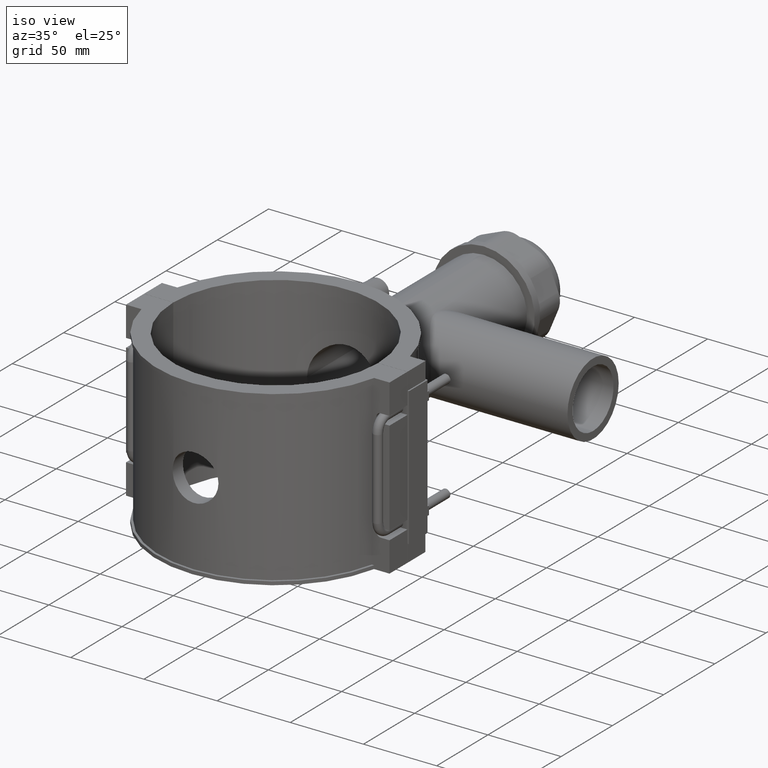
[diagram: clean part render]
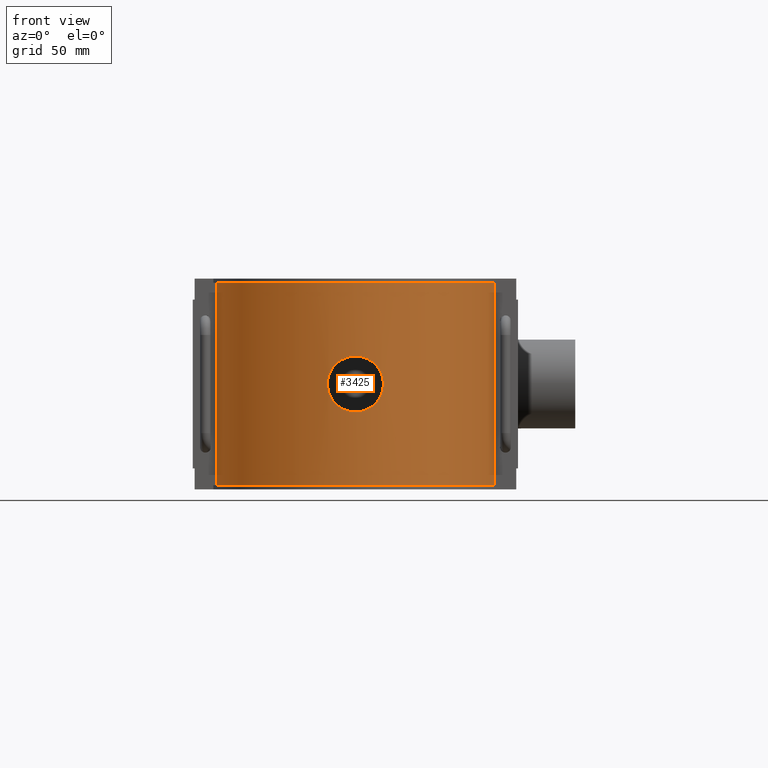
[diagram: tour spotlight — one face highlighted and labeled with its STEP entity id]
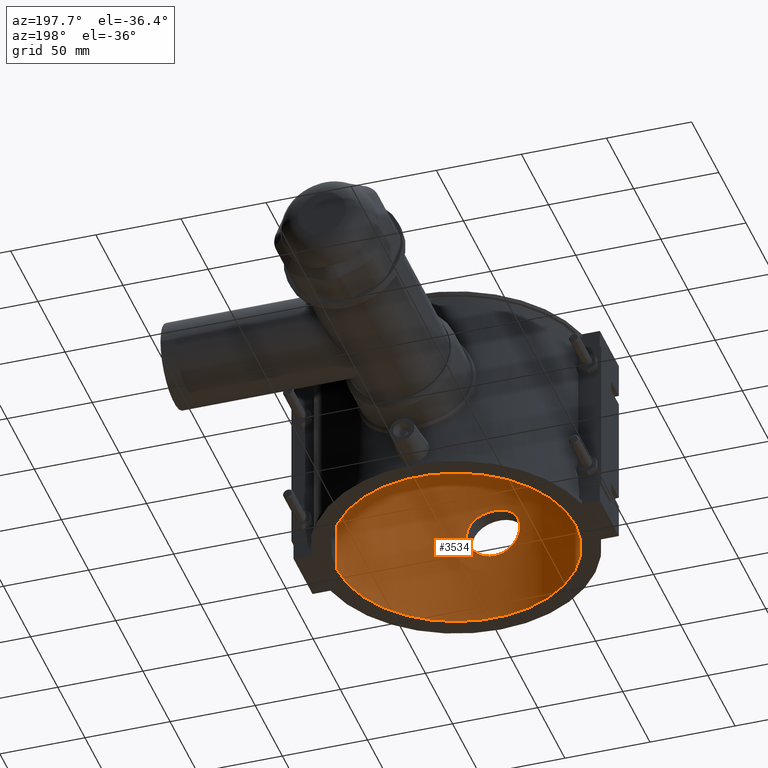
[diagram: tour spotlight — one face highlighted and labeled with its STEP entity id]
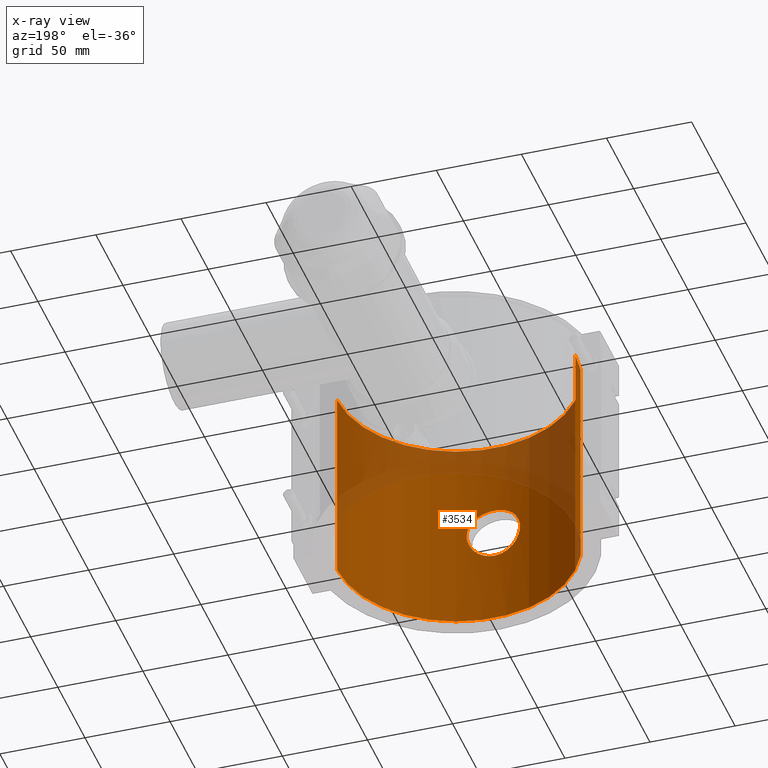
[diagram: x-ray of the same camera — body ghosted, this tour face saturated]
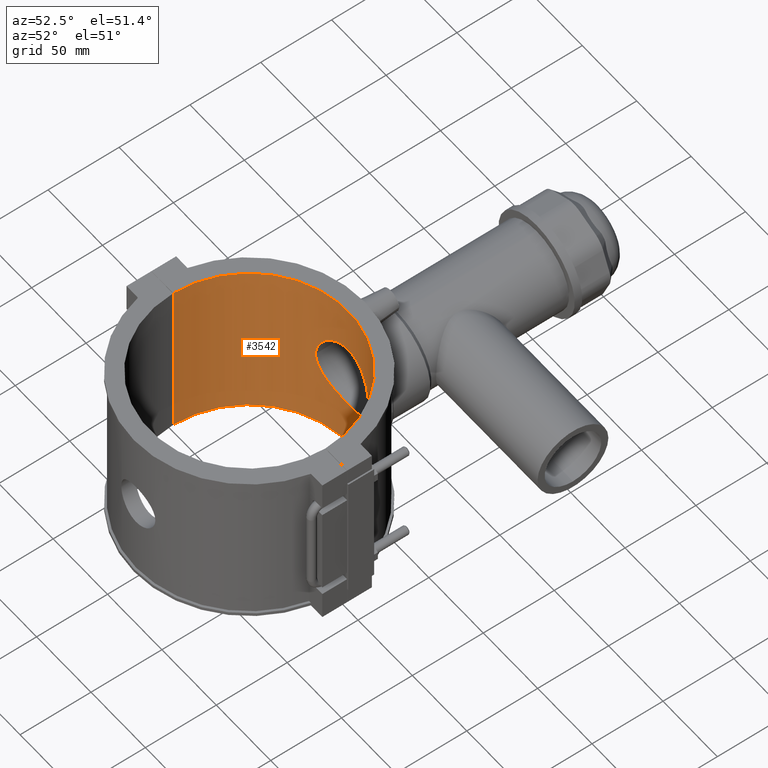
[diagram: tour spotlight — one face highlighted and labeled with its STEP entity id]
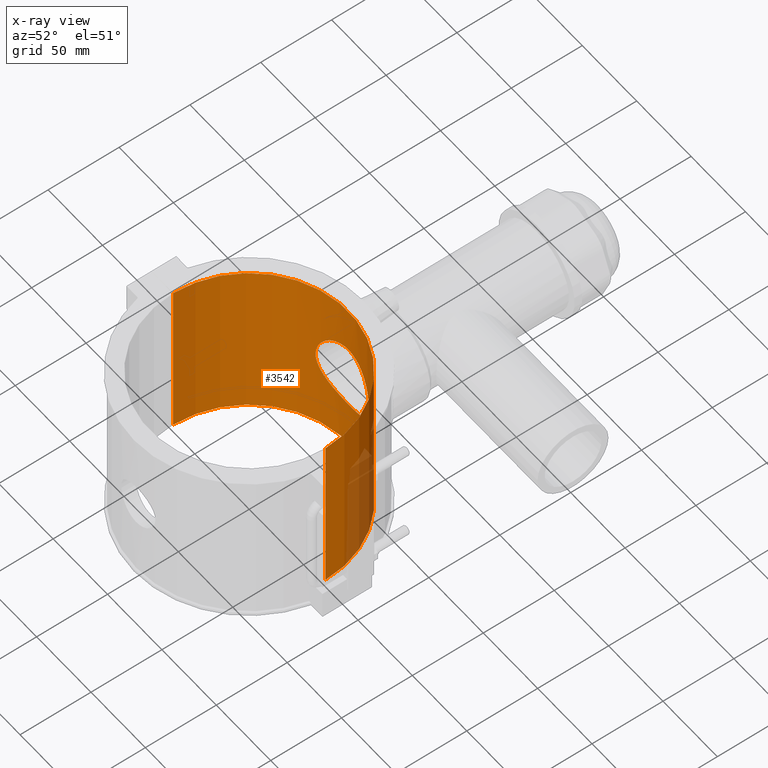
[diagram: x-ray of the same camera — body ghosted, this tour face saturated]
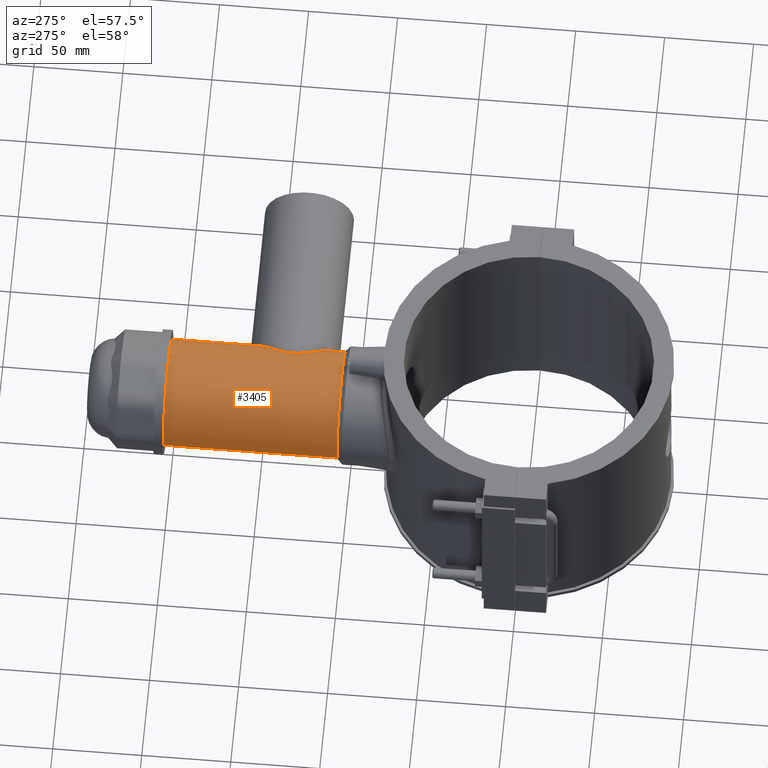
[diagram: tour spotlight — one face highlighted and labeled with its STEP entity id]
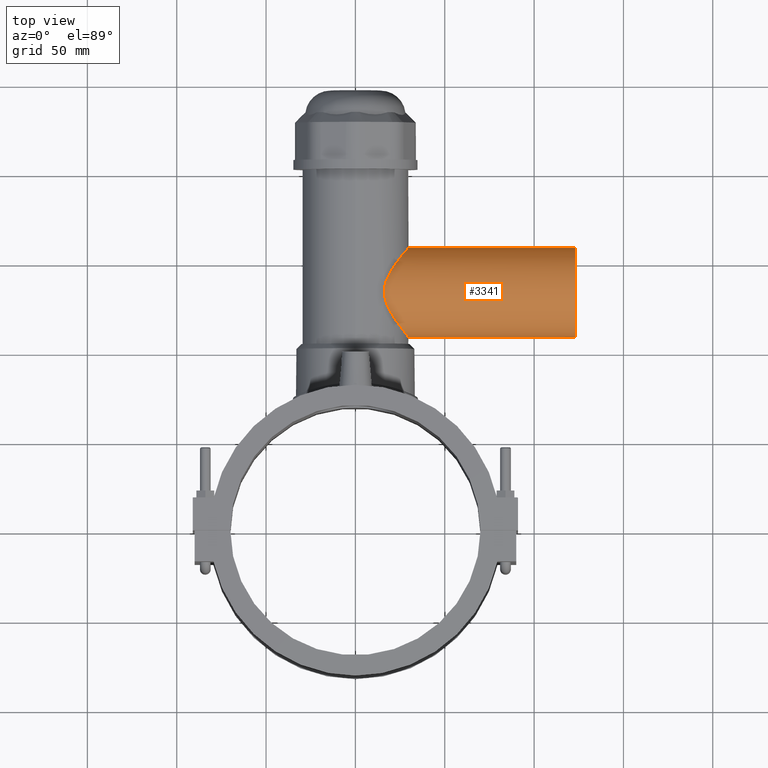
[diagram: tour spotlight — one face highlighted and labeled with its STEP entity id]
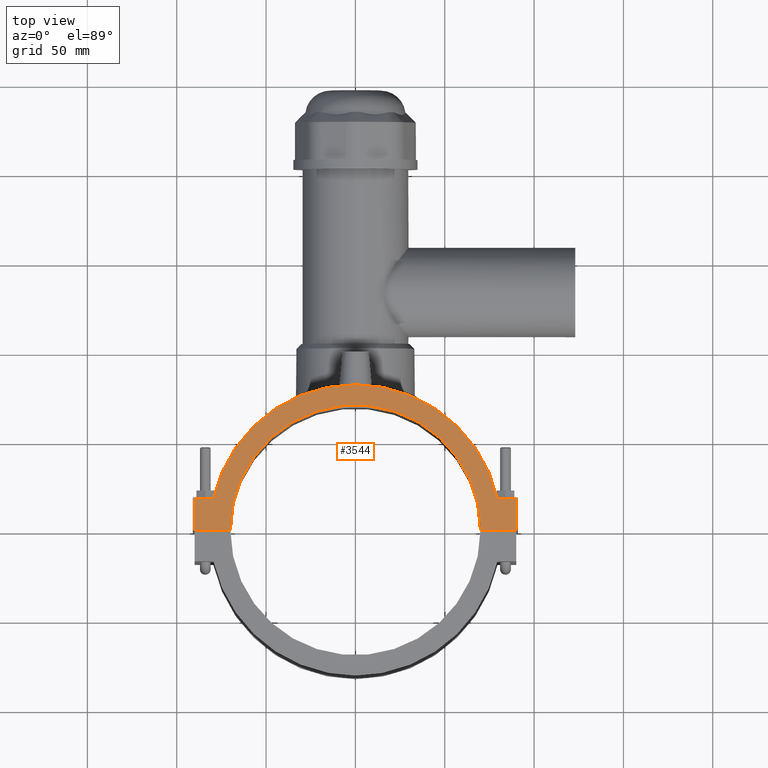
[diagram: tour spotlight — one face highlighted and labeled with its STEP entity id]
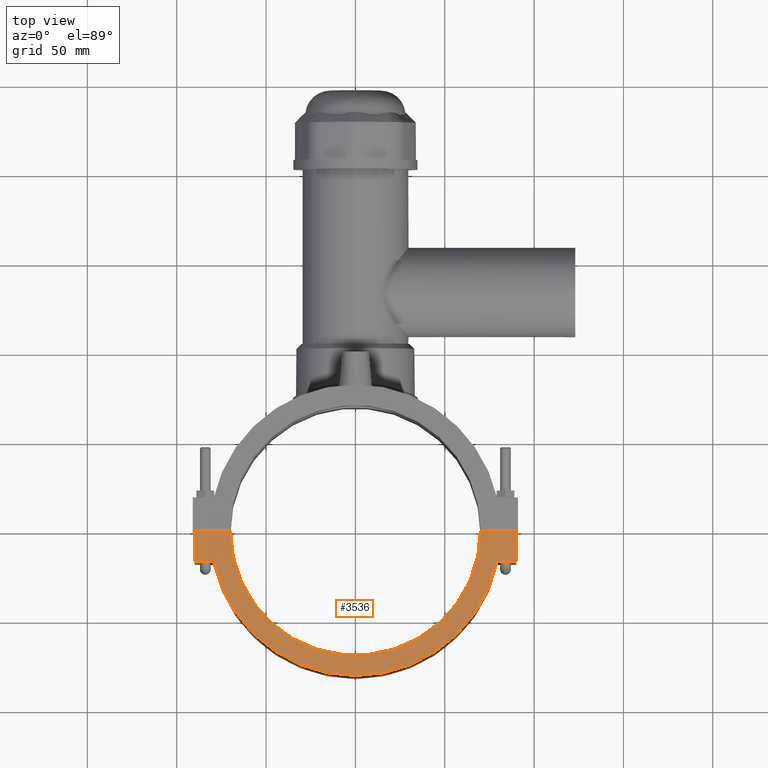
[diagram: tour spotlight — one face highlighted and labeled with its STEP entity id]
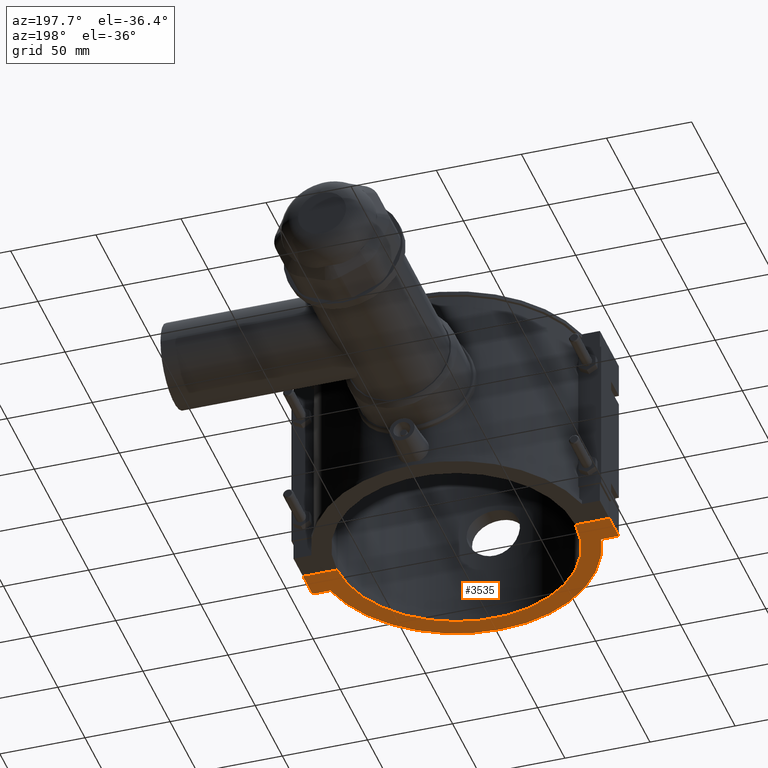
[diagram: tour spotlight — one face highlighted and labeled with its STEP entity id]
A machine part: a face-by-face anatomy tour. The part has 207 B-rep faces; the first image is the clean iso view, then the 8 largest visible faces are spotlighted one at a time (largest first), each with its STEP entity span.

Face 1 — front view, entity #3425. In plain terms, the highlighted cylindrical surface (partial cylindrical patch) has radius 79.8 mm, axis along (0, 0, 1).
Definition (entity closure, byte-faithful):
#117=LINE('',#6138,#404);
#152=LINE('',#6398,#439);
#404=VECTOR('',#4150,113.28);
#439=VECTOR('',#4227,113.28);
#650=FACE_BOUND('',#1137,.T.);
#731=B_SPLINE_CURVE_WITH_KNOTS('',3,(#5732,#5733,#5734,#5735,#5736,#5737,
#5738,#5739,#5740,#5741,#5742,#5743,#5744,#5745,#5746,#5747,#5748,#5749,
#5750,#5751,#5752,#5753,#5754,#5755,#5756,#5757,#5758,#5759,#5760,#5761,
#5762,#5763,#5764,#5765,#5766,#5767,#5768,#5769,#5770,#5771,#5772,#5773,
#5774,#5775,#5776,#5777,#5778,#5779,#5780,#5781,#5782,#5783,#5784,#5785,
#5786,#5787,#5788,#5789,#5790,#5791,#5792,#5793,#5794,#5795,#5796,#5797),
 .UNSPECIFIED.,.T.,.F.,(4,2,2,2,2,2,2,2,2,2,2,2,2,2,2,2,2,2,2,2,2,2,2,2,
2,2,2,2,2,2,2,2,4),(0.,0.296160389258301,0.592320778516602,0.888481167774903,
1.1846415570332,1.48078650597248,1.77693145491175,2.07307640385102,2.36922135279029,
2.66536630172956,2.96151125066883,3.2576561996081,3.55380114854738,3.84996153780568,
4.14612192706398,4.44228231632228,4.73844270558058,5.03460309483888,5.33076348409718,
5.62692387335548,5.92308426261378,6.21922921155306,6.51537416049233,6.8115191094316,
7.10766405837087,7.40380900731014,7.69995395624941,7.99609890518868,8.29224385412796,
8.58840424338626,8.88456463264456,9.18072502190286,9.47688541116116),
 .UNSPECIFIED.);
#796=CYLINDRICAL_SURFACE('',#3680,79.8);
#909=FACE_OUTER_BOUND('',#1136,.T.);
#1136=EDGE_LOOP('',(#2629,#2630,#2631,#2632));
#1137=EDGE_LOOP('',(#2633));
#1341=CIRCLE('',#3656,79.8);
#1349=CIRCLE('',#3670,79.8);
#1502=VERTEX_POINT('',#5731);
#1517=VERTEX_POINT('',#6123);
#1518=VERTEX_POINT('',#6125);
#1522=VERTEX_POINT('',#6137);
#1543=VERTEX_POINT('',#6208);
#1883=EDGE_CURVE('',#1502,#1502,#731,.T.);
#1902=EDGE_CURVE('',#1517,#1518,#1341,.T.);
#1907=EDGE_CURVE('',#1517,#1522,#117,.T.);
#1931=EDGE_CURVE('',#1543,#1522,#1349,.T.);
#1966=EDGE_CURVE('',#1518,#1543,#152,.T.);
#2629=ORIENTED_EDGE('',*,*,#1902,.T.);
#2630=ORIENTED_EDGE('',*,*,#1966,.T.);
#2631=ORIENTED_EDGE('',*,*,#1931,.T.);
#2632=ORIENTED_EDGE('',*,*,#1907,.F.);
#2633=ORIENTED_EDGE('',*,*,#1883,.T.);
#3425=ADVANCED_FACE('',(#909,#650),#796,.T.);
#3656=AXIS2_PLACEMENT_3D('',#6127,#4140,#4141);
#3670=AXIS2_PLACEMENT_3D('',#6209,#4187,#4188);
#3680=AXIS2_PLACEMENT_3D('',#6399,#4228,#4229);
#4140=DIRECTION('center_axis',(0.,0.,1.));
#4141=DIRECTION('ref_axis',(1.,0.,0.));
#4150=DIRECTION('',(0.,0.,1.));
#4187=DIRECTION('center_axis',(0.,0.,-1.));
#4188=DIRECTION('ref_axis',(1.,0.,0.));
#4227=DIRECTION('',(0.,0.,1.));
#4228=DIRECTION('center_axis',(0.,0.,1.));
#4229=DIRECTION('ref_axis',(1.,0.,0.));
#5731=CARTESIAN_POINT('',(15.68,-78.244345482597,2.77555756156289E-16));
#5732=CARTESIAN_POINT('Ctrl Pts',(15.68,-78.244345482597,2.77555756156289E-16));
#5733=CARTESIAN_POINT('Ctrl Pts',(15.68,-78.244345482597,-0.98720129752767));
#5734=CARTESIAN_POINT('Ctrl Pts',(15.5852670258171,-78.2635330153093,-2.0072735228596));
#5735=CARTESIAN_POINT('Ctrl Pts',(15.1871786844354,-78.3417561195393,-4.03476131728822));
#5736=CARTESIAN_POINT('Ctrl Pts',(14.8839178314738,-78.4007321999089,-5.04219773749511));
#5737=CARTESIAN_POINT('Ctrl Pts',(14.0830320861092,-78.5485456336392,-6.97301813539892));
#5738=CARTESIAN_POINT('Ctrl Pts',(13.5847703214263,-78.6373570579926,-7.89798904768564));
#5739=CARTESIAN_POINT('Ctrl Pts',(12.4343344189502,-78.8274523074948,-9.60788963661112));
#5740=CARTESIAN_POINT('Ctrl Pts',(11.7820810057343,-78.9285410961755,-10.3927876522758));
#5741=CARTESIAN_POINT('Ctrl Pts',(10.3928238676736,-79.1234553918684,-11.7820447903365));
#5742=CARTESIAN_POINT('Ctrl Pts',(9.60794265108503,-79.2241584895739,-12.4342941973184));
#5743=CARTESIAN_POINT('Ctrl Pts',(7.89803139926002,-79.412851292345,-13.5847463797022));
#5744=CARTESIAN_POINT('Ctrl Pts',(6.97303304497154,-79.5006552886048,-14.0830266925714));
#5745=CARTESIAN_POINT('Ctrl Pts',(5.04215919859568,-79.6464312551021,-14.8839330262207));
#5746=CARTESIAN_POINT('Ctrl Pts',(4.03469755807736,-79.7043936934068,-15.1871957960142));
#5747=CARTESIAN_POINT('Ctrl Pts',(2.00720303008282,-79.7812026383083,-15.5852762737236));
#5748=CARTESIAN_POINT('Ctrl Pts',(0.987149829797573,-79.8,-15.68));
#5749=CARTESIAN_POINT('Ctrl Pts',(-0.987149829797571,-79.8,-15.68));
#5750=CARTESIAN_POINT('Ctrl Pts',(-2.00720303008282,-79.7812026383083,-15.5852762737236));
#5751=CARTESIAN_POINT('Ctrl Pts',(-4.03469755807735,-79.7043936934068,-15.1871957960142));
#5752=CARTESIAN_POINT('Ctrl Pts',(-5.04215919859568,-79.6464312551021,-14.8839330262207));
#5753=CARTESIAN_POINT('Ctrl Pts',(-6.97303304497154,-79.5006552886048,-14.0830266925714));
#5754=CARTESIAN_POINT('Ctrl Pts',(-7.89803139926001,-79.412851292345,-13.5847463797022));
#5755=CARTESIAN_POINT('Ctrl Pts',(-9.60794265108502,-79.2241584895739,-12.4342941973184));
#5756=CARTESIAN_POINT('Ctrl Pts',(-10.3928238676736,-79.1234553918684,-11.7820447903365));
#5757=CARTESIAN_POINT('Ctrl Pts',(-11.7820810057343,-78.9285410961755,-10.3927876522759));
#5758=CARTESIAN_POINT('Ctrl Pts',(-12.4343344189502,-78.8274523074948,-9.60788963661113));
#5759=CARTESIAN_POINT('Ctrl Pts',(-13.5847703214263,-78.6373570579926,-7.89798904768564));
#5760=CARTESIAN_POINT('Ctrl Pts',(-14.0830320861092,-78.5485456336392,-6.97301813539893));
#5761=CARTESIAN_POINT('Ctrl Pts',(-14.8839178314738,-78.4007321999089,-5.04219773749512));
#5762=CARTESIAN_POINT('Ctrl Pts',(-15.1871786844354,-78.3417561195393,-4.03476131728823));
#5763=CARTESIAN_POINT('Ctrl Pts',(-15.5852670258171,-78.2635330153093,-2.00727352285961));
#5764=CARTESIAN_POINT('Ctrl Pts',(-15.68,-78.244345482597,-0.987201297527672));
#5765=CARTESIAN_POINT('Ctrl Pts',(-15.68,-78.244345482597,0.987201297527672));
#5766=CARTESIAN_POINT('Ctrl Pts',(-15.5852670258171,-78.2635330153093,2.00727352285961));
#5767=CARTESIAN_POINT('Ctrl Pts',(-15.1871786844354,-78.3417561195393,4.03476131728823));
#5768=CARTESIAN_POINT('Ctrl Pts',(-14.8839178314738,-78.4007321999089,5.04219773749512));
#5769=CARTESIAN_POINT('Ctrl Pts',(-14.0830320861092,-78.5485456336392,6.97301813539893));
#5770=CARTESIAN_POINT('Ctrl Pts',(-13.5847703214263,-78.6373570579926,7.89798904768565));
#5771=CARTESIAN_POINT('Ctrl Pts',(-12.4343344189502,-78.8274523074948,9.60788963661112));
#5772=CARTESIAN_POINT('Ctrl Pts',(-11.7820810057343,-78.9285410961755,10.3927876522758));
#5773=CARTESIAN_POINT('Ctrl Pts',(-10.3928238676736,-79.1234553918684,11.7820447903365));
#5774=CARTESIAN_POINT('Ctrl Pts',(-9.60794265108503,-79.2241584895739,12.4342941973184));
#5775=CARTESIAN_POINT('Ctrl Pts',(-7.89803139926001,-79.412851292345,13.5847463797022));
#5776=CARTESIAN_POINT('Ctrl Pts',(-6.97303304497154,-79.5006552886048,14.0830266925714));
#5777=CARTESIAN_POINT('Ctrl Pts',(-5.04215919859568,-79.6464312551021,14.8839330262207));
#5778=CARTESIAN_POINT('Ctrl Pts',(-4.03469755807736,-79.7043936934068,15.1871957960142));
#5779=CARTESIAN_POINT('Ctrl Pts',(-2.00720303008283,-79.7812026383083,15.5852762737236));
#5780=CARTESIAN_POINT('Ctrl Pts',(-0.987149829797576,-79.8,15.68));
#5781=CARTESIAN_POINT('Ctrl Pts',(0.987149829797571,-79.8,15.68));
#5782=CARTESIAN_POINT('Ctrl Pts',(2.00720303008282,-79.7812026383083,15.5852762737236));
#5783=CARTESIAN_POINT('Ctrl Pts',(4.03469755807736,-79.7043936934068,15.1871957960142));
#5784=CARTESIAN_POINT('Ctrl Pts',(5.04215919859568,-79.6464312551021,14.8839330262207));
#5785=CARTESIAN_POINT('Ctrl Pts',(6.97303304497154,-79.5006552886048,14.0830266925714));
#5786=CARTESIAN_POINT('Ctrl Pts',(7.89803139926001,-79.412851292345,13.5847463797022));
#5787=CARTESIAN_POINT('Ctrl Pts',(9.60794265108502,-79.2241584895739,12.4342941973184));
#5788=CARTESIAN_POINT('Ctrl Pts',(10.3928238676736,-79.1234553918684,11.7820447903365));
#5789=CARTESIAN_POINT('Ctrl Pts',(11.7820810057343,-78.9285410961755,10.3927876522759));
#5790=CARTESIAN_POINT('Ctrl Pts',(12.4343344189502,-78.8274523074948,9.60788963661113));
#5791=CARTESIAN_POINT('Ctrl Pts',(13.5847703214263,-78.6373570579926,7.89798904768565));
#5792=CARTESIAN_POINT('Ctrl Pts',(14.0830320861092,-78.5485456336392,6.97301813539893));
#5793=CARTESIAN_POINT('Ctrl Pts',(14.8839178314738,-78.4007321999089,5.04219773749513));
#5794=CARTESIAN_POINT('Ctrl Pts',(15.1871786844354,-78.3417561195393,4.03476131728824));
#5795=CARTESIAN_POINT('Ctrl Pts',(15.5852670258171,-78.2635330153093,2.00727352285961));
#5796=CARTESIAN_POINT('Ctrl Pts',(15.68,-78.244345482597,0.987201297527676));
#5797=CARTESIAN_POINT('Ctrl Pts',(15.68,-78.244345482597,5.55111512312578E-16));
#6123=CARTESIAN_POINT('',(-77.8574980332659,-17.5,-56.64));
#6125=CARTESIAN_POINT('',(77.8574980332659,-17.5,-56.64));
#6127=CARTESIAN_POINT('Origin',(0.,0.,-56.64));
#6137=CARTESIAN_POINT('',(-77.8574980332659,-17.5,56.64));
#6138=CARTESIAN_POINT('',(-77.8574980332659,-17.5,0.));
#6208=CARTESIAN_POINT('',(77.8574980332659,-17.5,56.64));
#6209=CARTESIAN_POINT('Origin',(0.,0.,56.64));
#6398=CARTESIAN_POINT('',(77.8574980332659,-17.5,0.));
#6399=CARTESIAN_POINT('Origin',(0.,0.,0.));

Face 2 — auxiliary view, entity #3534. An x-ray twin of the same camera follows (body ghosted, this face saturated) — the face is partly hidden behind the body. In plain terms, the highlighted cylindrical surface (partial cylindrical patch) has radius 70 mm, axis along (0, 0, 1).
Definition (entity closure, byte-faithful):
#313=LINE('',#7285,#600);
#319=LINE('',#7299,#606);
#600=VECTOR('',#4688,118.);
#606=VECTOR('',#4704,118.);
#683=FACE_BOUND('',#1279,.T.);
#732=B_SPLINE_CURVE_WITH_KNOTS('',3,(#5799,#5800,#5801,#5802,#5803,#5804,
#5805,#5806,#5807,#5808,#5809,#5810,#5811,#5812,#5813,#5814,#5815,#5816,
#5817,#5818,#5819,#5820,#5821,#5822,#5823,#5824,#5825,#5826,#5827,#5828,
#5829,#5830,#5831,#5832,#5833,#5834,#5835,#5836,#5837,#5838,#5839,#5840,
#5841,#5842,#5843,#5844,#5845,#5846,#5847,#5848,#5849,#5850,#5851,#5852,
#5853,#5854,#5855,#5856,#5857,#5858,#5859,#5860,#5861,#5862,#5863,#5864),
 .UNSPECIFIED.,.T.,.F.,(4,2,2,2,2,2,2,2,2,2,2,2,2,2,2,2,2,2,2,2,2,2,2,2,
2,2,2,2,2,2,2,2,4),(0.,0.296420870546457,0.592841741092914,0.88926261163937,
1.18568348218583,1.482077959119,1.77847243605217,2.07486691298534,2.37126138991851,
2.66765586685169,2.96405034378486,3.26044482071803,3.5568392976512,3.85326016819766,
4.14968103874411,4.44610190929057,4.74252277983703,5.03894365038348,5.33536452092994,
5.6317853914764,5.92820626202285,6.22460073895603,6.5209952158892,6.81738969282237,
7.11378416975554,7.41017864668871,7.70657312362188,8.00296760055506,8.29936207748823,
8.59578294803469,8.89220381858114,9.1886246891276,9.48504555967405),
 .UNSPECIFIED.);
#820=CYLINDRICAL_SURFACE('',#3833,70.);
#1018=FACE_OUTER_BOUND('',#1278,.T.);
#1278=EDGE_LOOP('',(#3138,#3139,#3140,#3141));
#1279=EDGE_LOOP('',(#3142));
#1404=CIRCLE('',#3834,70.);
#1405=CIRCLE('',#3835,70.);
#1503=VERTEX_POINT('',#5798);
#1725=VERTEX_POINT('',#7282);
#1726=VERTEX_POINT('',#7284);
#1728=VERTEX_POINT('',#7296);
#1729=VERTEX_POINT('',#7298);
#1884=EDGE_CURVE('',#1503,#1503,#732,.T.);
#2203=EDGE_CURVE('',#1726,#1725,#313,.T.);
#2209=EDGE_CURVE('',#1728,#1725,#1404,.T.);
#2210=EDGE_CURVE('',#1728,#1729,#319,.T.);
#2211=EDGE_CURVE('',#1726,#1729,#1405,.T.);
#3138=ORIENTED_EDGE('',*,*,#2203,.T.);
#3139=ORIENTED_EDGE('',*,*,#2209,.F.);
#3140=ORIENTED_EDGE('',*,*,#2210,.T.);
#3141=ORIENTED_EDGE('',*,*,#2211,.F.);
#3142=ORIENTED_EDGE('',*,*,#1884,.T.);
#3534=ADVANCED_FACE('',(#1018,#683),#820,.F.);
#3833=AXIS2_PLACEMENT_3D('',#7295,#4700,#4701);
#3834=AXIS2_PLACEMENT_3D('',#7297,#4702,#4703);
#3835=AXIS2_PLACEMENT_3D('',#7300,#4705,#4706);
#4688=DIRECTION('',(0.,0.,-1.));
#4700=DIRECTION('center_axis',(0.,0.,1.));
#4701=DIRECTION('ref_axis',(-1.,0.,0.));
#4702=DIRECTION('center_axis',(0.,0.,1.));
#4703=DIRECTION('ref_axis',(-1.,0.,0.));
#4704=DIRECTION('',(0.,0.,1.));
#4705=DIRECTION('center_axis',(0.,0.,-1.));
#4706=DIRECTION('ref_axis',(-1.,0.,0.));
#5798=CARTESIAN_POINT('',(15.68,-68.2212400942697,-2.77555756156289E-16));
#5799=CARTESIAN_POINT('Ctrl Pts',(15.68,-68.2212400942697,-2.77555756156289E-16));
#5800=CARTESIAN_POINT('Ctrl Pts',(15.68,-68.2212400942697,0.988069568488189));
#5801=CARTESIAN_POINT('Ctrl Pts',(15.5851002722004,-68.2432880352789,2.00876849244975));
#5802=CARTESIAN_POINT('Ctrl Pts',(15.1866172651678,-68.3330693616015,4.03697379451734));
#5803=CARTESIAN_POINT('Ctrl Pts',(14.8831316027235,-68.4007311392567,5.04450251941092));
#5804=CARTESIAN_POINT('Ctrl Pts',(14.0820126608347,-68.5701432019379,6.97506560058731));
#5805=CARTESIAN_POINT('Ctrl Pts',(13.5837426072779,-68.671860840656,7.89970172382316));
#5806=CARTESIAN_POINT('Ctrl Pts',(12.4336038127259,-68.889389827043,9.60879008048471));
#5807=CARTESIAN_POINT('Ctrl Pts',(11.7816531079645,-69.0049780218986,10.3932155500456));
#5808=CARTESIAN_POINT('Ctrl Pts',(10.3932773639859,-69.2276970537437,11.7815912940242));
#5809=CARTESIAN_POINT('Ctrl Pts',(9.6088806550941,-69.3427088939211,12.4335350708031));
#5810=CARTESIAN_POINT('Ctrl Pts',(7.89977434837878,-69.5581442350981,13.5837015228355));
#5811=CARTESIAN_POINT('Ctrl Pts',(6.97509155399249,-69.6583582495379,14.0820032544888));
#5812=CARTESIAN_POINT('Ctrl Pts',(5.04443720835152,-69.8247264895486,14.8831573411507));
#5813=CARTESIAN_POINT('Ctrl Pts',(4.03686527886801,-69.8908724809837,15.1866464169826));
#5814=CARTESIAN_POINT('Ctrl Pts',(2.00864817338445,-69.978537209265,15.585116078829));
#5815=CARTESIAN_POINT('Ctrl Pts',(0.987981589777239,-70.,15.68));
#5816=CARTESIAN_POINT('Ctrl Pts',(-0.987981589777237,-70.,15.68));
#5817=CARTESIAN_POINT('Ctrl Pts',(-2.00864817338445,-69.978537209265,15.585116078829));
#5818=CARTESIAN_POINT('Ctrl Pts',(-4.03686527886801,-69.8908724809837,15.1866464169826));
#5819=CARTESIAN_POINT('Ctrl Pts',(-5.04443720835152,-69.8247264895486,14.8831573411507));
#5820=CARTESIAN_POINT('Ctrl Pts',(-6.97509155399249,-69.6583582495379,14.0820032544888));
#5821=CARTESIAN_POINT('Ctrl Pts',(-7.89977434837879,-69.5581442350981,13.5837015228355));
#5822=CARTESIAN_POINT('Ctrl Pts',(-9.6088806550941,-69.3427088939211,12.4335350708031));
#5823=CARTESIAN_POINT('Ctrl Pts',(-10.3932773639859,-69.2276970537437,11.7815912940242));
#5824=CARTESIAN_POINT('Ctrl Pts',(-11.7816531079645,-69.0049780218986,10.3932155500456));
#5825=CARTESIAN_POINT('Ctrl Pts',(-12.4336038127258,-68.889389827043,9.60879008048471));
#5826=CARTESIAN_POINT('Ctrl Pts',(-13.5837426072779,-68.671860840656,7.89970172382316));
#5827=CARTESIAN_POINT('Ctrl Pts',(-14.0820126608347,-68.5701432019379,6.97506560058731));
#5828=CARTESIAN_POINT('Ctrl Pts',(-14.8831316027235,-68.4007311392567,5.04450251941092));
#5829=CARTESIAN_POINT('Ctrl Pts',(-15.1866172651678,-68.3330693616015,4.03697379451733));
#5830=CARTESIAN_POINT('Ctrl Pts',(-15.5851002722004,-68.2432880352789,2.00876849244975));
#5831=CARTESIAN_POINT('Ctrl Pts',(-15.68,-68.2212400942698,0.988069568488189));
#5832=CARTESIAN_POINT('Ctrl Pts',(-15.68,-68.2212400942698,-0.988069568488189));
#5833=CARTESIAN_POINT('Ctrl Pts',(-15.5851002722004,-68.2432880352789,-2.00876849244975));
#5834=CARTESIAN_POINT('Ctrl Pts',(-15.1866172651678,-68.3330693616015,-4.03697379451734));
#5835=CARTESIAN_POINT('Ctrl Pts',(-14.8831316027235,-68.4007311392567,-5.04450251941092));
#5836=CARTESIAN_POINT('Ctrl Pts',(-14.0820126608347,-68.5701432019379,-6.97506560058731));
#5837=CARTESIAN_POINT('Ctrl Pts',(-13.5837426072779,-68.671860840656,-7.89970172382316));
#5838=CARTESIAN_POINT('Ctrl Pts',(-12.4336038127259,-68.889389827043,-9.60879008048471));
#5839=CARTESIAN_POINT('Ctrl Pts',(-11.7816531079645,-69.0049780218986,-10.3932155500456));
#5840=CARTESIAN_POINT('Ctrl Pts',(-10.3932773639859,-69.2276970537437,-11.7815912940242));
#5841=CARTESIAN_POINT('Ctrl Pts',(-9.6088806550941,-69.3427088939211,-12.4335350708031));
#5842=CARTESIAN_POINT('Ctrl Pts',(-7.89977434837879,-69.5581442350981,-13.5837015228355));
#5843=CARTESIAN_POINT('Ctrl Pts',(-6.9750915539925,-69.6583582495379,-14.0820032544888));
#5844=CARTESIAN_POINT('Ctrl Pts',(-5.04443720835153,-69.8247264895486,-14.8831573411507));
#5845=CARTESIAN_POINT('Ctrl Pts',(-4.03686527886802,-69.8908724809837,-15.1866464169826));
#5846=CARTESIAN_POINT('Ctrl Pts',(-2.00864817338445,-69.978537209265,-15.585116078829));
#5847=CARTESIAN_POINT('Ctrl Pts',(-0.987981589777244,-70.,-15.68));
#5848=CARTESIAN_POINT('Ctrl Pts',(0.987981589777238,-70.,-15.68));
#5849=CARTESIAN_POINT('Ctrl Pts',(2.00864817338445,-69.978537209265,-15.585116078829));
#5850=CARTESIAN_POINT('Ctrl Pts',(4.03686527886801,-69.8908724809837,-15.1866464169826));
#5851=CARTESIAN_POINT('Ctrl Pts',(5.04443720835153,-69.8247264895486,-14.8831573411507));
#5852=CARTESIAN_POINT('Ctrl Pts',(6.97509155399249,-69.6583582495379,-14.0820032544888));
#5853=CARTESIAN_POINT('Ctrl Pts',(7.89977434837878,-69.5581442350981,-13.5837015228355));
#5854=CARTESIAN_POINT('Ctrl Pts',(9.6088806550941,-69.3427088939211,-12.4335350708031));
#5855=CARTESIAN_POINT('Ctrl Pts',(10.3932773639859,-69.2276970537437,-11.7815912940242));
#5856=CARTESIAN_POINT('Ctrl Pts',(11.7816531079645,-69.0049780218986,-10.3932155500456));
#5857=CARTESIAN_POINT('Ctrl Pts',(12.4336038127259,-68.889389827043,-9.60879008048471));
#5858=CARTESIAN_POINT('Ctrl Pts',(13.5837426072779,-68.671860840656,-7.89970172382316));
#5859=CARTESIAN_POINT('Ctrl Pts',(14.0820126608347,-68.5701432019379,-6.97506560058731));
#5860=CARTESIAN_POINT('Ctrl Pts',(14.8831316027235,-68.4007311392567,-5.04450251941092));
#5861=CARTESIAN_POINT('Ctrl Pts',(15.1866172651678,-68.3330693616015,-4.03697379451734));
#5862=CARTESIAN_POINT('Ctrl Pts',(15.5851002722004,-68.2432880352789,-2.00876849244976));
#5863=CARTESIAN_POINT('Ctrl Pts',(15.68,-68.2212400942698,-0.988069568488193));
#5864=CARTESIAN_POINT('Ctrl Pts',(15.68,-68.2212400942698,-2.77555756156289E-16));
#7282=CARTESIAN_POINT('',(69.9999821428549,-0.0500000000000078,-59.));
#7284=CARTESIAN_POINT('',(69.9999821428549,-0.0500000000000078,59.));
#7285=CARTESIAN_POINT('',(69.9999821428549,-0.0500000000000078,0.));
#7295=CARTESIAN_POINT('Origin',(0.,0.,0.));
#7296=CARTESIAN_POINT('',(-69.9999821428549,-0.0500000000000078,-59.));
#7297=CARTESIAN_POINT('Origin',(0.,0.,-59.));
#7298=CARTESIAN_POINT('',(-69.9999821428549,-0.0500000000000078,59.));
#7299=CARTESIAN_POINT('',(-69.9999821428549,-0.0500000000000078,0.));
#7300=CARTESIAN_POINT('Origin',(0.,0.,59.));

Face 3 — auxiliary view, entity #3542. An x-ray twin of the same camera follows (body ghosted, this face saturated) — the face is partly hidden behind the body. In plain terms, the highlighted cylindrical surface (partial cylindrical patch) has radius 70 mm, axis along (0, 0, 1).
Definition (entity closure, byte-faithful):
#276=LINE('',#7024,#563);
#323=LINE('',#7311,#610);
#563=VECTOR('',#4561,118.);
#610=VECTOR('',#4720,118.);
#686=FACE_BOUND('',#1290,.T.);
#687=B_SPLINE_CURVE_WITH_KNOTS('',3,(#4745,#4746,#4747,#4748,#4749,#4750,
#4751,#4752,#4753,#4754,#4755,#4756,#4757,#4758,#4759,#4760,#4761,#4762,
#4763,#4764,#4765,#4766,#4767,#4768,#4769,#4770,#4771,#4772,#4773,#4774,
#4775,#4776,#4777,#4778,#4779,#4780,#4781,#4782,#4783,#4784,#4785,#4786,
#4787,#4788,#4789,#4790,#4791,#4792,#4793,#4794,#4795,#4796,#4797,#4798,
#4799,#4800,#4801,#4802,#4803,#4804,#4805,#4806,#4807,#4808,#4809,#4810),
 .UNSPECIFIED.,.T.,.F.,(4,2,2,2,2,2,2,2,2,2,2,2,2,2,2,2,2,2,2,2,2,2,2,2,
2,2,2,2,2,2,2,2,4),(0.,0.465872443413726,0.931744886827452,1.39761733024118,
1.8634897736549,2.32909651464454,2.79470325563417,3.26030999662381,3.72591673761344,
4.19152347860307,4.65713021959271,5.12273696058234,5.58834370157198,6.0542161449857,
6.52008858839943,6.98596103181315,7.45183347522688,7.91770591864061,8.38357836205433,
8.84945080546806,9.31532324888178,9.78092998987142,10.2465367308611,10.7121434718507,
11.1777502128403,11.64335695383,12.1089636948196,12.5745704358092,13.0401771767989,
13.5060496202126,13.9719220636263,14.43779450704,14.9036669504538),
 .UNSPECIFIED.);
#821=CYLINDRICAL_SURFACE('',#3843,70.);
#1026=FACE_OUTER_BOUND('',#1289,.T.);
#1289=EDGE_LOOP('',(#3199,#3200,#3201,#3202));
#1290=EDGE_LOOP('',(#3203));
#1406=CIRCLE('',#3844,70.);
#1407=CIRCLE('',#3845,70.);
#1409=VERTEX_POINT('',#4744);
#1688=VERTEX_POINT('',#7021);
#1689=VERTEX_POINT('',#7023);
#1730=VERTEX_POINT('',#7308);
#1731=VERTEX_POINT('',#7310);
#1734=EDGE_CURVE('',#1409,#1409,#687,.T.);
#2141=EDGE_CURVE('',#1689,#1688,#276,.T.);
#2215=EDGE_CURVE('',#1731,#1730,#323,.T.);
#2220=EDGE_CURVE('',#1689,#1730,#1406,.T.);
#2221=EDGE_CURVE('',#1731,#1688,#1407,.T.);
#3199=ORIENTED_EDGE('',*,*,#2215,.T.);
#3200=ORIENTED_EDGE('',*,*,#2220,.F.);
#3201=ORIENTED_EDGE('',*,*,#2141,.T.);
#3202=ORIENTED_EDGE('',*,*,#2221,.F.);
#3203=ORIENTED_EDGE('',*,*,#1734,.T.);
#3542=ADVANCED_FACE('',(#1026,#686),#821,.F.);
#3843=AXIS2_PLACEMENT_3D('',#7319,#4729,#4730);
#3844=AXIS2_PLACEMENT_3D('',#7320,#4731,#4732);
#3845=AXIS2_PLACEMENT_3D('',#7321,#4733,#4734);
#4561=DIRECTION('',(0.,0.,-1.));
#4720=DIRECTION('',(0.,0.,1.));
#4729=DIRECTION('center_axis',(0.,0.,1.));
#4730=DIRECTION('ref_axis',(-1.,0.,0.));
#4731=DIRECTION('center_axis',(0.,0.,-1.));
#4732=DIRECTION('ref_axis',(-1.,0.,0.));
#4733=DIRECTION('center_axis',(0.,0.,1.));
#4734=DIRECTION('ref_axis',(-1.,0.,0.));
#4744=CARTESIAN_POINT('',(-24.5,65.5724789831832,4.08006961549745E-14));
#4745=CARTESIAN_POINT('Ctrl Pts',(-24.5,65.5724789831832,4.08006961549745E-14));
#4746=CARTESIAN_POINT('Ctrl Pts',(-24.5,65.5724789831832,1.55290814471246));
#4747=CARTESIAN_POINT('Ctrl Pts',(-24.3499822193852,65.6291829806881,3.15414279073402));
#4748=CARTESIAN_POINT('Ctrl Pts',(-23.7233399472305,65.8582905514502,6.33035486938292));
#4749=CARTESIAN_POINT('Ctrl Pts',(-23.2469017744435,66.0304515509849,7.90538655108236));
#4750=CARTESIAN_POINT('Ctrl Pts',(-21.9929239627139,66.4586354232746,10.9190169526659));
#4751=CARTESIAN_POINT('Ctrl Pts',(-21.2143898814747,66.7145285453667,12.360266843486));
#4752=CARTESIAN_POINT('Ctrl Pts',(-19.4203604502837,67.2586667792043,15.0225209159013));
#4753=CARTESIAN_POINT('Ctrl Pts',(-18.4047033851323,67.5463599923405,16.2435288930085));
#4754=CARTESIAN_POINT('Ctrl Pts',(-16.2441451875646,68.0982392108379,18.4040870905763));
#4755=CARTESIAN_POINT('Ctrl Pts',(-15.0234299545134,68.3823015599156,19.4196689435942));
#4756=CARTESIAN_POINT('Ctrl Pts',(-12.3610139914827,68.91333649814,21.2139652744843));
#4757=CARTESIAN_POINT('Ctrl Pts',(-10.9193089651858,69.1598321611587,21.9928144928903));
#4758=CARTESIAN_POINT('Ctrl Pts',(-7.90476827695083,69.5688747310418,23.2471470011481));
#4759=CARTESIAN_POINT('Ctrl Pts',(-6.32929496273259,69.7314416220349,23.7236265508491));
#4760=CARTESIAN_POINT('Ctrl Pts',(-3.15294403281646,69.9470719139821,24.3501411778331));
#4761=CARTESIAN_POINT('Ctrl Pts',(-1.55202246996545,70.,24.5));
#4762=CARTESIAN_POINT('Ctrl Pts',(1.55202246996544,70.,24.5));
#4763=CARTESIAN_POINT('Ctrl Pts',(3.15294403281645,69.9470719139821,24.3501411778331));
#4764=CARTESIAN_POINT('Ctrl Pts',(6.32929496273258,69.7314416220349,23.7236265508491));
#4765=CARTESIAN_POINT('Ctrl Pts',(7.90476827695083,69.5688747310418,23.2471470011481));
#4766=CARTESIAN_POINT('Ctrl Pts',(10.9193089651858,69.1598321611587,21.9928144928903));
#4767=CARTESIAN_POINT('Ctrl Pts',(12.3610139914827,68.91333649814,21.2139652744843));
#4768=CARTESIAN_POINT('Ctrl Pts',(15.0234299545134,68.3823015599156,19.4196689435942));
#4769=CARTESIAN_POINT('Ctrl Pts',(16.2441451875646,68.0982392108379,18.4040870905763));
#4770=CARTESIAN_POINT('Ctrl Pts',(18.4047033851323,67.5463599923405,16.2435288930085));
#4771=CARTESIAN_POINT('Ctrl Pts',(19.4203604502837,67.2586667792043,15.0225209159013));
#4772=CARTESIAN_POINT('Ctrl Pts',(21.2143898814747,66.7145285453667,12.360266843486));
#4773=CARTESIAN_POINT('Ctrl Pts',(21.9929239627139,66.4586354232746,10.9190169526659));
#4774=CARTESIAN_POINT('Ctrl Pts',(23.2469017744435,66.0304515509849,7.90538655108236));
#4775=CARTESIAN_POINT('Ctrl Pts',(23.7233399472305,65.8582905514502,6.33035486938293));
#4776=CARTESIAN_POINT('Ctrl Pts',(24.3499822193852,65.6291829806881,3.15414279073402));
#4777=CARTESIAN_POINT('Ctrl Pts',(24.5,65.5724789831832,1.55290814471246));
#4778=CARTESIAN_POINT('Ctrl Pts',(24.5,65.5724789831832,-1.55290814471238));
#4779=CARTESIAN_POINT('Ctrl Pts',(24.3499822193852,65.6291829806881,-3.15414279073394));
#4780=CARTESIAN_POINT('Ctrl Pts',(23.7233399472305,65.8582905514502,-6.33035486938285));
#4781=CARTESIAN_POINT('Ctrl Pts',(23.2469017744435,66.030451550985,-7.90538655108228));
#4782=CARTESIAN_POINT('Ctrl Pts',(21.9929239627139,66.4586354232746,-10.9190169526658));
#4783=CARTESIAN_POINT('Ctrl Pts',(21.2143898814747,66.7145285453667,-12.360266843486));
#4784=CARTESIAN_POINT('Ctrl Pts',(19.4203604502837,67.2586667792043,-15.0225209159012));
#4785=CARTESIAN_POINT('Ctrl Pts',(18.4047033851323,67.5463599923405,-16.2435288930084));
#4786=CARTESIAN_POINT('Ctrl Pts',(16.2441451875646,68.0982392108379,-18.4040870905762));
#4787=CARTESIAN_POINT('Ctrl Pts',(15.0234299545134,68.3823015599156,-19.4196689435941));
#4788=CARTESIAN_POINT('Ctrl Pts',(12.3610139914827,68.91333649814,-21.2139652744842));
#4789=CARTESIAN_POINT('Ctrl Pts',(10.9193089651858,69.1598321611587,-21.9928144928902));
#4790=CARTESIAN_POINT('Ctrl Pts',(7.90476827695083,69.5688747310418,-23.2471470011481));
#4791=CARTESIAN_POINT('Ctrl Pts',(6.32929496273259,69.7314416220349,-23.723626550849));
#4792=CARTESIAN_POINT('Ctrl Pts',(3.15294403281646,69.9470719139821,-24.350141177833));
#4793=CARTESIAN_POINT('Ctrl Pts',(1.55202246996545,70.,-24.4999999999999));
#4794=CARTESIAN_POINT('Ctrl Pts',(-1.55202246996544,70.,-24.4999999999999));
#4795=CARTESIAN_POINT('Ctrl Pts',(-3.15294403281644,69.9470719139821,-24.350141177833));
#4796=CARTESIAN_POINT('Ctrl Pts',(-6.32929496273257,69.7314416220349,-23.7236265508491));
#4797=CARTESIAN_POINT('Ctrl Pts',(-7.90476827695082,69.5688747310418,-23.2471470011481));
#4798=CARTESIAN_POINT('Ctrl Pts',(-10.9193089651858,69.1598321611587,-21.9928144928902));
#4799=CARTESIAN_POINT('Ctrl Pts',(-12.3610139914826,68.91333649814,-21.2139652744842));
#4800=CARTESIAN_POINT('Ctrl Pts',(-15.0234299545134,68.3823015599156,-19.4196689435941));
#4801=CARTESIAN_POINT('Ctrl Pts',(-16.2441451875645,68.0982392108379,-18.4040870905762));
#4802=CARTESIAN_POINT('Ctrl Pts',(-18.4047033851323,67.5463599923405,-16.2435288930084));
#4803=CARTESIAN_POINT('Ctrl Pts',(-19.4203604502837,67.2586667792043,-15.0225209159012));
#4804=CARTESIAN_POINT('Ctrl Pts',(-21.2143898814747,66.7145285453667,-12.360266843486));
#4805=CARTESIAN_POINT('Ctrl Pts',(-21.9929239627139,66.4586354232746,-10.9190169526658));
#4806=CARTESIAN_POINT('Ctrl Pts',(-23.2469017744435,66.0304515509849,-7.9053865510823));
#4807=CARTESIAN_POINT('Ctrl Pts',(-23.7233399472305,65.8582905514502,-6.33035486938286));
#4808=CARTESIAN_POINT('Ctrl Pts',(-24.3499822193852,65.6291829806881,-3.15414279073396));
#4809=CARTESIAN_POINT('Ctrl Pts',(-24.5,65.5724789831832,-1.55290814471239));
#4810=CARTESIAN_POINT('Ctrl Pts',(-24.5,65.5724789831832,4.05231403988182E-14));
#7021=CARTESIAN_POINT('',(-69.9999821428549,0.0500000000000078,-59.));
#7023=CARTESIAN_POINT('',(-69.9999821428549,0.0500000000000078,59.));
#7024=CARTESIAN_POINT('',(-69.9999821428549,0.0500000000000078,0.));
#7308=CARTESIAN_POINT('',(69.9999821428549,0.0500000000000078,59.));
#7310=CARTESIAN_POINT('',(69.9999821428549,0.0500000000000078,-59.));
#7311=CARTESIAN_POINT('',(69.9999821428549,0.0500000000000078,0.));
#7319=CARTESIAN_POINT('Origin',(0.,0.,0.));
#7320=CARTESIAN_POINT('Origin',(0.,0.,59.));
#7321=CARTESIAN_POINT('Origin',(0.,0.,-59.));

Face 4 — auxiliary view, entity #3405. In plain terms, the highlighted cylindrical surface (bore or boss wall) has radius 29.75 mm, axis along (0, 1, 0).
Definition (entity closure, byte-faithful):
#640=FACE_BOUND('',#1107,.T.);
#641=FACE_BOUND('',#1108,.T.);
#690=B_SPLINE_CURVE_WITH_KNOTS('',3,(#4952,#4953,#4954,#4955,#4956,#4957,
#4958,#4959,#4960,#4961,#4962,#4963,#4964,#4965,#4966,#4967,#4968,#4969,
#4970,#4971,#4972,#4973,#4974,#4975,#4976,#4977,#4978,#4979,#4980,#4981,
#4982,#4983,#4984,#4985,#4986,#4987,#4988,#4989,#4990,#4991,#4992,#4993,
#4994,#4995,#4996,#4997,#4998,#4999,#5000,#5001,#5002,#5003,#5004,#5005,
#5006,#5007,#5008,#5009,#5010,#5011,#5012,#5013,#5014,#5015,#5016,#5017),
 .UNSPECIFIED.,.T.,.F.,(4,2,2,2,2,2,2,2,2,2,2,2,2,2,2,2,2,2,2,2,2,2,2,2,
2,2,2,2,2,2,2,2,4),(0.,0.522568563654122,1.04513712730824,1.56770569096237,
2.09027425461649,2.5903539629229,3.0904336712293,3.59051337953571,4.09059308784212,
4.59067279614852,5.09075250445493,5.59083221276134,6.09091192106774,6.61348048472187,
7.13604904837599,7.65861761203011,8.18118617568423,8.70375473933835,9.22632330299248,
9.7488918666466,10.2714604303007,10.7715401386071,11.2716198469135,11.7716995552199,
12.2717792635263,12.7718589718328,13.2719386801392,13.7720183884456,14.272098096752,
14.7946666604061,15.3172352240602,15.8398037877143,16.3623723513685),
 .UNSPECIFIED.);
#786=CYLINDRICAL_SURFACE('',#3638,29.75);
#889=FACE_OUTER_BOUND('',#1106,.T.);
#1106=EDGE_LOOP('',(#2513));
#1107=EDGE_LOOP('',(#2514));
#1108=EDGE_LOOP('',(#2515));
#1326=CIRCLE('',#3620,29.75);
#1333=CIRCLE('',#3639,29.75);
#1414=VERTEX_POINT('',#4951);
#1490=VERTEX_POINT('',#5684);
#1500=VERTEX_POINT('',#5724);
#1739=EDGE_CURVE('',#1414,#1414,#690,.T.);
#1863=EDGE_CURVE('',#1490,#1490,#1326,.T.);
#1881=EDGE_CURVE('',#1500,#1500,#1333,.T.);
#2513=ORIENTED_EDGE('',*,*,#1863,.T.);
#2514=ORIENTED_EDGE('',*,*,#1739,.T.);
#2515=ORIENTED_EDGE('',*,*,#1881,.F.);
#3405=ADVANCED_FACE('',(#889,#640,#641),#786,.T.);
#3620=AXIS2_PLACEMENT_3D('',#5685,#4049,#4050);
#3638=AXIS2_PLACEMENT_3D('',#5723,#4096,#4097);
#3639=AXIS2_PLACEMENT_3D('',#5725,#4098,#4099);
#4049=DIRECTION('center_axis',(0.,1.,3.06161699786838E-16));
#4050=DIRECTION('ref_axis',(1.,0.,0.));
#4096=DIRECTION('center_axis',(0.,1.,3.06161699786838E-16));
#4097=DIRECTION('ref_axis',(0.,0.,1.));
#4098=DIRECTION('center_axis',(0.,1.,3.06161699786838E-16));
#4099=DIRECTION('ref_axis',(1.,0.,0.));
#4951=CARTESIAN_POINT('',(16.1264534228701,134.,-25.));
#4952=CARTESIAN_POINT('Ctrl Pts',(16.1264534228701,134.,-25.));
#4953=CARTESIAN_POINT('Ctrl Pts',(16.1264534228701,132.25810478782,-25.));
#4954=CARTESIAN_POINT('Ctrl Pts',(16.4156964263806,130.556950060228,-24.8182506110568));
#4955=CARTESIAN_POINT('Ctrl Pts',(17.4005121807929,127.280079676907,-24.137995521956));
#4956=CARTESIAN_POINT('Ctrl Pts',(18.0904346694603,125.702720969226,-23.6392373771135));
#4957=CARTESIAN_POINT('Ctrl Pts',(19.6481348429015,122.702646376927,-22.3613101322452));
#4958=CARTESIAN_POINT('Ctrl Pts',(20.5154866784592,121.279264763482,-21.5809498798814));
#4959=CARTESIAN_POINT('Ctrl Pts',(22.2522275388825,118.634664322696,-19.7853724200739));
#4960=CARTESIAN_POINT('Ctrl Pts',(23.1217415532479,117.414048723213,-18.7693877825401));
#4961=CARTESIAN_POINT('Ctrl Pts',(24.7001054587178,115.277594557342,-16.6329336166696));
#4962=CARTESIAN_POINT('Ctrl Pts',(25.4725581427333,114.274452383582,-15.4418404785597));
#4963=CARTESIAN_POINT('Ctrl Pts',(26.8934785189047,112.470829151156,-12.8079064999883));
#4964=CARTESIAN_POINT('Ctrl Pts',(27.5415028106582,111.670347062189,-11.3648271892273));
#4965=CARTESIAN_POINT('Ctrl Pts',(28.6138751002325,110.3603537446,-8.30300267797276));
#4966=CARTESIAN_POINT('Ctrl Pts',(29.0390260861101,109.849688750342,-6.68060064687088));
#4967=CARTESIAN_POINT('Ctrl Pts',(29.6072328555953,109.169358953306,-3.36262155232597));
#4968=CARTESIAN_POINT('Ctrl Pts',(29.75,109.,-1.66693236102136));
#4969=CARTESIAN_POINT('Ctrl Pts',(29.75,109.,1.66693236102136));
#4970=CARTESIAN_POINT('Ctrl Pts',(29.6072328555953,109.169358953306,3.36262155232596));
#4971=CARTESIAN_POINT('Ctrl Pts',(29.0390260861101,109.849688750342,6.68060064687088));
#4972=CARTESIAN_POINT('Ctrl Pts',(28.6138751002325,110.3603537446,8.30300267797275));
#4973=CARTESIAN_POINT('Ctrl Pts',(27.5415028106582,111.670347062189,11.3648271892273));
#4974=CARTESIAN_POINT('Ctrl Pts',(26.8934785189048,112.470829151156,12.8079064999883));
#4975=CARTESIAN_POINT('Ctrl Pts',(25.4725581427333,114.274452383582,15.4418404785597));
#4976=CARTESIAN_POINT('Ctrl Pts',(24.7001054587179,115.277594557342,16.6329336166696));
#4977=CARTESIAN_POINT('Ctrl Pts',(23.1217415532479,117.414048723213,18.7693877825401));
#4978=CARTESIAN_POINT('Ctrl Pts',(22.2522275388826,118.634664322696,19.7853724200739));
#4979=CARTESIAN_POINT('Ctrl Pts',(20.5154866784592,121.279264763482,21.5809498798814));
#4980=CARTESIAN_POINT('Ctrl Pts',(19.6481348429016,122.702646376927,22.3613101322453));
#4981=CARTESIAN_POINT('Ctrl Pts',(18.0904346694604,125.702720969226,23.6392373771135));
#4982=CARTESIAN_POINT('Ctrl Pts',(17.4005121807929,127.280079676907,24.137995521956));
#4983=CARTESIAN_POINT('Ctrl Pts',(16.4156964263807,130.556950060228,24.8182506110568));
#4984=CARTESIAN_POINT('Ctrl Pts',(16.1264534228702,132.25810478782,25.));
#4985=CARTESIAN_POINT('Ctrl Pts',(16.1264534228702,135.74189521218,25.));
#4986=CARTESIAN_POINT('Ctrl Pts',(16.4156964263807,137.443049939772,24.8182506110568));
#4987=CARTESIAN_POINT('Ctrl Pts',(17.4005121807929,140.719920323093,24.137995521956));
#4988=CARTESIAN_POINT('Ctrl Pts',(18.0904346694604,142.297279030774,23.6392373771135));
#4989=CARTESIAN_POINT('Ctrl Pts',(19.6481348429016,145.297353623073,22.3613101322453));
#4990=CARTESIAN_POINT('Ctrl Pts',(20.5154866784592,146.720735236518,21.5809498798814));
#4991=CARTESIAN_POINT('Ctrl Pts',(22.2522275388826,149.365335677304,19.7853724200739));
#4992=CARTESIAN_POINT('Ctrl Pts',(23.1217415532479,150.585951276787,18.76938778254));
#4993=CARTESIAN_POINT('Ctrl Pts',(24.7001054587179,152.722405442658,16.6329336166696));
#4994=CARTESIAN_POINT('Ctrl Pts',(25.4725581427334,153.725547616418,15.4418404785597));
#4995=CARTESIAN_POINT('Ctrl Pts',(26.8934785189048,155.529170848844,12.8079064999883));
#4996=CARTESIAN_POINT('Ctrl Pts',(27.5415028106582,156.329652937811,11.3648271892273));
#4997=CARTESIAN_POINT('Ctrl Pts',(28.6138751002325,157.6396462554,8.30300267797275));
#4998=CARTESIAN_POINT('Ctrl Pts',(29.0390260861102,158.150311249658,6.68060064687088));
#4999=CARTESIAN_POINT('Ctrl Pts',(29.6072328555953,158.830641046694,3.36262155232596));
#5000=CARTESIAN_POINT('Ctrl Pts',(29.75,159.,1.66693236102136));
#5001=CARTESIAN_POINT('Ctrl Pts',(29.75,159.,-1.66693236102135));
#5002=CARTESIAN_POINT('Ctrl Pts',(29.6072328555953,158.830641046694,-3.36262155232596));
#5003=CARTESIAN_POINT('Ctrl Pts',(29.0390260861101,158.150311249658,-6.68060064687088));
#5004=CARTESIAN_POINT('Ctrl Pts',(28.6138751002325,157.6396462554,-8.30300267797275));
#5005=CARTESIAN_POINT('Ctrl Pts',(27.5415028106582,156.329652937811,-11.3648271892273));
#5006=CARTESIAN_POINT('Ctrl Pts',(26.8934785189047,155.529170848844,-12.8079064999883));
#5007=CARTESIAN_POINT('Ctrl Pts',(25.4725581427333,153.725547616418,-15.4418404785597));
#5008=CARTESIAN_POINT('Ctrl Pts',(24.7001054587178,152.722405442658,-16.6329336166696));
#5009=CARTESIAN_POINT('Ctrl Pts',(23.1217415532479,150.585951276787,-18.76938778254));
#5010=CARTESIAN_POINT('Ctrl Pts',(22.2522275388825,149.365335677304,-19.7853724200739));
#5011=CARTESIAN_POINT('Ctrl Pts',(20.5154866784592,146.720735236518,-21.5809498798814));
#5012=CARTESIAN_POINT('Ctrl Pts',(19.6481348429015,145.297353623073,-22.3613101322452));
#5013=CARTESIAN_POINT('Ctrl Pts',(18.0904346694603,142.297279030774,-23.6392373771135));
#5014=CARTESIAN_POINT('Ctrl Pts',(17.4005121807928,140.719920323093,-24.137995521956));
#5015=CARTESIAN_POINT('Ctrl Pts',(16.4156964263806,137.443049939772,-24.8182506110568));
#5016=CARTESIAN_POINT('Ctrl Pts',(16.1264534228701,135.74189521218,-25.));
#5017=CARTESIAN_POINT('Ctrl Pts',(16.1264534228701,134.,-25.));
#5684=CARTESIAN_POINT('',(0.,105.1,29.75));
#5685=CARTESIAN_POINT('Origin',(0.,105.1,1.0746275662518E-14));
#5723=CARTESIAN_POINT('Origin',(0.,153.925,2.56946206546104E-14));
#5724=CARTESIAN_POINT('',(0.,202.75,29.7500000000001));
#5725=CARTESIAN_POINT('Origin',(0.,202.75,4.06429656467028E-14));

Face 5 — top view, entity #3341. In plain terms, the highlighted cylindrical surface (bore or boss wall) has radius 25 mm, axis along (1, 0, 0).
Definition (entity closure, byte-faithful):
#633=FACE_BOUND('',#1036,.T.);
#690=B_SPLINE_CURVE_WITH_KNOTS('',3,(#4952,#4953,#4954,#4955,#4956,#4957,
#4958,#4959,#4960,#4961,#4962,#4963,#4964,#4965,#4966,#4967,#4968,#4969,
#4970,#4971,#4972,#4973,#4974,#4975,#4976,#4977,#4978,#4979,#4980,#4981,
#4982,#4983,#4984,#4985,#4986,#4987,#4988,#4989,#4990,#4991,#4992,#4993,
#4994,#4995,#4996,#4997,#4998,#4999,#5000,#5001,#5002,#5003,#5004,#5005,
#5006,#5007,#5008,#5009,#5010,#5011,#5012,#5013,#5014,#5015,#5016,#5017),
 .UNSPECIFIED.,.T.,.F.,(4,2,2,2,2,2,2,2,2,2,2,2,2,2,2,2,2,2,2,2,2,2,2,2,
2,2,2,2,2,2,2,2,4),(0.,0.522568563654122,1.04513712730824,1.56770569096237,
2.09027425461649,2.5903539629229,3.0904336712293,3.59051337953571,4.09059308784212,
4.59067279614852,5.09075250445493,5.59083221276134,6.09091192106774,6.61348048472187,
7.13604904837599,7.65861761203011,8.18118617568423,8.70375473933835,9.22632330299248,
9.7488918666466,10.2714604303007,10.7715401386071,11.2716198469135,11.7716995552199,
12.2717792635263,12.7718589718328,13.2719386801392,13.7720183884456,14.272098096752,
14.7946666604061,15.3172352240602,15.8398037877143,16.3623723513685),
 .UNSPECIFIED.);
#776=CYLINDRICAL_SURFACE('',#3552,25.);
#825=FACE_OUTER_BOUND('',#1035,.T.);
#1035=EDGE_LOOP('',(#2228));
#1036=EDGE_LOOP('',(#2229));
#1295=CIRCLE('',#3553,25.);
#1413=VERTEX_POINT('',#4949);
#1414=VERTEX_POINT('',#4951);
#1738=EDGE_CURVE('',#1413,#1413,#1295,.T.);
#1739=EDGE_CURVE('',#1414,#1414,#690,.T.);
#2228=ORIENTED_EDGE('',*,*,#1738,.F.);
#2229=ORIENTED_EDGE('',*,*,#1739,.F.);
#3341=ADVANCED_FACE('',(#825,#633),#776,.T.);
#3552=AXIS2_PLACEMENT_3D('',#4948,#3860,#3861);
#3553=AXIS2_PLACEMENT_3D('',#4950,#3862,#3863);
#3860=DIRECTION('center_axis',(1.,0.,0.));
#3861=DIRECTION('ref_axis',(0.,1.,0.));
#3862=DIRECTION('center_axis',(1.,0.,0.));
#3863=DIRECTION('ref_axis',(0.,0.,-1.));
#4948=CARTESIAN_POINT('Origin',(61.5,134.,0.));
#4949=CARTESIAN_POINT('',(123.,159.,0.));
#4950=CARTESIAN_POINT('Origin',(123.,134.,0.));
#4951=CARTESIAN_POINT('',(16.1264534228701,134.,-25.));
#4952=CARTESIAN_POINT('Ctrl Pts',(16.1264534228701,134.,-25.));
#4953=CARTESIAN_POINT('Ctrl Pts',(16.1264534228701,132.25810478782,-25.));
#4954=CARTESIAN_POINT('Ctrl Pts',(16.4156964263806,130.556950060228,-24.8182506110568));
#4955=CARTESIAN_POINT('Ctrl Pts',(17.4005121807929,127.280079676907,-24.137995521956));
#4956=CARTESIAN_POINT('Ctrl Pts',(18.0904346694603,125.702720969226,-23.6392373771135));
#4957=CARTESIAN_POINT('Ctrl Pts',(19.6481348429015,122.702646376927,-22.3613101322452));
#4958=CARTESIAN_POINT('Ctrl Pts',(20.5154866784592,121.279264763482,-21.5809498798814));
#4959=CARTESIAN_POINT('Ctrl Pts',(22.2522275388825,118.634664322696,-19.7853724200739));
#4960=CARTESIAN_POINT('Ctrl Pts',(23.1217415532479,117.414048723213,-18.7693877825401));
#4961=CARTESIAN_POINT('Ctrl Pts',(24.7001054587178,115.277594557342,-16.6329336166696));
#4962=CARTESIAN_POINT('Ctrl Pts',(25.4725581427333,114.274452383582,-15.4418404785597));
#4963=CARTESIAN_POINT('Ctrl Pts',(26.8934785189047,112.470829151156,-12.8079064999883));
#4964=CARTESIAN_POINT('Ctrl Pts',(27.5415028106582,111.670347062189,-11.3648271892273));
#4965=CARTESIAN_POINT('Ctrl Pts',(28.6138751002325,110.3603537446,-8.30300267797276));
#4966=CARTESIAN_POINT('Ctrl Pts',(29.0390260861101,109.849688750342,-6.68060064687088));
#4967=CARTESIAN_POINT('Ctrl Pts',(29.6072328555953,109.169358953306,-3.36262155232597));
#4968=CARTESIAN_POINT('Ctrl Pts',(29.75,109.,-1.66693236102136));
#4969=CARTESIAN_POINT('Ctrl Pts',(29.75,109.,1.66693236102136));
#4970=CARTESIAN_POINT('Ctrl Pts',(29.6072328555953,109.169358953306,3.36262155232596));
#4971=CARTESIAN_POINT('Ctrl Pts',(29.0390260861101,109.849688750342,6.68060064687088));
#4972=CARTESIAN_POINT('Ctrl Pts',(28.6138751002325,110.3603537446,8.30300267797275));
#4973=CARTESIAN_POINT('Ctrl Pts',(27.5415028106582,111.670347062189,11.3648271892273));
#4974=CARTESIAN_POINT('Ctrl Pts',(26.8934785189048,112.470829151156,12.8079064999883));
#4975=CARTESIAN_POINT('Ctrl Pts',(25.4725581427333,114.274452383582,15.4418404785597));
#4976=CARTESIAN_POINT('Ctrl Pts',(24.7001054587179,115.277594557342,16.6329336166696));
#4977=CARTESIAN_POINT('Ctrl Pts',(23.1217415532479,117.414048723213,18.7693877825401));
#4978=CARTESIAN_POINT('Ctrl Pts',(22.2522275388826,118.634664322696,19.7853724200739));
#4979=CARTESIAN_POINT('Ctrl Pts',(20.5154866784592,121.279264763482,21.5809498798814));
#4980=CARTESIAN_POINT('Ctrl Pts',(19.6481348429016,122.702646376927,22.3613101322453));
#4981=CARTESIAN_POINT('Ctrl Pts',(18.0904346694604,125.702720969226,23.6392373771135));
#4982=CARTESIAN_POINT('Ctrl Pts',(17.4005121807929,127.280079676907,24.137995521956));
#4983=CARTESIAN_POINT('Ctrl Pts',(16.4156964263807,130.556950060228,24.8182506110568));
#4984=CARTESIAN_POINT('Ctrl Pts',(16.1264534228702,132.25810478782,25.));
#4985=CARTESIAN_POINT('Ctrl Pts',(16.1264534228702,135.74189521218,25.));
#4986=CARTESIAN_POINT('Ctrl Pts',(16.4156964263807,137.443049939772,24.8182506110568));
#4987=CARTESIAN_POINT('Ctrl Pts',(17.4005121807929,140.719920323093,24.137995521956));
#4988=CARTESIAN_POINT('Ctrl Pts',(18.0904346694604,142.297279030774,23.6392373771135));
#4989=CARTESIAN_POINT('Ctrl Pts',(19.6481348429016,145.297353623073,22.3613101322453));
#4990=CARTESIAN_POINT('Ctrl Pts',(20.5154866784592,146.720735236518,21.5809498798814));
#4991=CARTESIAN_POINT('Ctrl Pts',(22.2522275388826,149.365335677304,19.7853724200739));
#4992=CARTESIAN_POINT('Ctrl Pts',(23.1217415532479,150.585951276787,18.76938778254));
#4993=CARTESIAN_POINT('Ctrl Pts',(24.7001054587179,152.722405442658,16.6329336166696));
#4994=CARTESIAN_POINT('Ctrl Pts',(25.4725581427334,153.725547616418,15.4418404785597));
#4995=CARTESIAN_POINT('Ctrl Pts',(26.8934785189048,155.529170848844,12.8079064999883));
#4996=CARTESIAN_POINT('Ctrl Pts',(27.5415028106582,156.329652937811,11.3648271892273));
#4997=CARTESIAN_POINT('Ctrl Pts',(28.6138751002325,157.6396462554,8.30300267797275));
#4998=CARTESIAN_POINT('Ctrl Pts',(29.0390260861102,158.150311249658,6.68060064687088));
#4999=CARTESIAN_POINT('Ctrl Pts',(29.6072328555953,158.830641046694,3.36262155232596));
#5000=CARTESIAN_POINT('Ctrl Pts',(29.75,159.,1.66693236102136));
#5001=CARTESIAN_POINT('Ctrl Pts',(29.75,159.,-1.66693236102135));
#5002=CARTESIAN_POINT('Ctrl Pts',(29.6072328555953,158.830641046694,-3.36262155232596));
#5003=CARTESIAN_POINT('Ctrl Pts',(29.0390260861101,158.150311249658,-6.68060064687088));
#5004=CARTESIAN_POINT('Ctrl Pts',(28.6138751002325,157.6396462554,-8.30300267797275));
#5005=CARTESIAN_POINT('Ctrl Pts',(27.5415028106582,156.329652937811,-11.3648271892273));
#5006=CARTESIAN_POINT('Ctrl Pts',(26.8934785189047,155.529170848844,-12.8079064999883));
#5007=CARTESIAN_POINT('Ctrl Pts',(25.4725581427333,153.725547616418,-15.4418404785597));
#5008=CARTESIAN_POINT('Ctrl Pts',(24.7001054587178,152.722405442658,-16.6329336166696));
#5009=CARTESIAN_POINT('Ctrl Pts',(23.1217415532479,150.585951276787,-18.76938778254));
#5010=CARTESIAN_POINT('Ctrl Pts',(22.2522275388825,149.365335677304,-19.7853724200739));
#5011=CARTESIAN_POINT('Ctrl Pts',(20.5154866784592,146.720735236518,-21.5809498798814));
#5012=CARTESIAN_POINT('Ctrl Pts',(19.6481348429015,145.297353623073,-22.3613101322452));
#5013=CARTESIAN_POINT('Ctrl Pts',(18.0904346694603,142.297279030774,-23.6392373771135));
#5014=CARTESIAN_POINT('Ctrl Pts',(17.4005121807928,140.719920323093,-24.137995521956));
#5015=CARTESIAN_POINT('Ctrl Pts',(16.4156964263806,137.443049939772,-24.8182506110568));
#5016=CARTESIAN_POINT('Ctrl Pts',(16.1264534228701,135.74189521218,-25.));
#5017=CARTESIAN_POINT('Ctrl Pts',(16.1264534228701,134.,-25.));

Face 6 — top view, entity #3544. In plain terms, the highlighted planar face has unit normal (0, 0, 1).
Definition (entity closure, byte-faithful):
#136=LINE('',#6218,#423);
#177=LINE('',#6489,#464);
#220=LINE('',#6692,#507);
#222=LINE('',#6695,#509);
#277=LINE('',#7025,#564);
#322=LINE('',#7309,#609);
#423=VECTOR('',#4195,10.5074920762969);
#464=VECTOR('',#4270,17.45);
#507=VECTOR('',#4349,17.45);
#509=VECTOR('',#4353,10.5074920762969);
#564=VECTOR('',#4562,20.0000178571452);
#609=VECTOR('',#4719,20.0000178571451);
#1028=FACE_OUTER_BOUND('',#1292,.T.);
#1292=EDGE_LOOP('',(#3212,#3213,#3214,#3215,#3216,#3217,#3218,#3219));
#1344=CIRCLE('',#3662,81.396);
#1406=CIRCLE('',#3844,70.);
#1535=VERTEX_POINT('',#6187);
#1536=VERTEX_POINT('',#6188);
#1546=VERTEX_POINT('',#6216);
#1596=VERTEX_POINT('',#6487);
#1632=VERTEX_POINT('',#6689);
#1633=VERTEX_POINT('',#6691);
#1689=VERTEX_POINT('',#7023);
#1730=VERTEX_POINT('',#7308);
#1921=EDGE_CURVE('',#1535,#1536,#1344,.T.);
#1936=EDGE_CURVE('',#1536,#1546,#136,.T.);
#1998=EDGE_CURVE('',#1546,#1596,#177,.T.);
#2050=EDGE_CURVE('',#1633,#1632,#220,.T.);
#2052=EDGE_CURVE('',#1632,#1535,#222,.T.);
#2142=EDGE_CURVE('',#1596,#1689,#277,.T.);
#2214=EDGE_CURVE('',#1730,#1633,#322,.T.);
#2220=EDGE_CURVE('',#1689,#1730,#1406,.T.);
#3212=ORIENTED_EDGE('',*,*,#2214,.T.);
#3213=ORIENTED_EDGE('',*,*,#2050,.T.);
#3214=ORIENTED_EDGE('',*,*,#2052,.T.);
#3215=ORIENTED_EDGE('',*,*,#1921,.T.);
#3216=ORIENTED_EDGE('',*,*,#1936,.T.);
#3217=ORIENTED_EDGE('',*,*,#1998,.T.);
#3218=ORIENTED_EDGE('',*,*,#2142,.T.);
#3219=ORIENTED_EDGE('',*,*,#2220,.T.);
#3337=PLANE('',#3847);
#3544=ADVANCED_FACE('',(#1028),#3337,.T.);
#3662=AXIS2_PLACEMENT_3D('',#6189,#4166,#4167);
#3844=AXIS2_PLACEMENT_3D('',#7320,#4731,#4732);
#3847=AXIS2_PLACEMENT_3D('',#7323,#4737,#4738);
#4166=DIRECTION('center_axis',(0.,0.,1.));
#4167=DIRECTION('ref_axis',(0.976614427290077,0.21499828001376,0.));
#4195=DIRECTION('',(-1.,0.,0.));
#4270=DIRECTION('',(0.,-1.,0.));
#4349=DIRECTION('',(0.,1.,0.));
#4353=DIRECTION('',(-1.,0.,0.));
#4562=DIRECTION('',(1.,-1.92747052886312E-19,0.));
#4719=DIRECTION('',(1.,-1.92747052886312E-19,0.));
#4731=DIRECTION('center_axis',(0.,0.,-1.));
#4732=DIRECTION('ref_axis',(-1.,0.,0.));
#4737=DIRECTION('center_axis',(0.,0.,1.));
#4738=DIRECTION('ref_axis',(1.,0.,0.));
#6187=CARTESIAN_POINT('',(79.4925079237031,17.5,59.));
#6188=CARTESIAN_POINT('',(-79.4925079237031,17.5,59.));
#6189=CARTESIAN_POINT('Origin',(0.,0.,59.));
#6216=CARTESIAN_POINT('',(-90.,17.5,59.));
#6218=CARTESIAN_POINT('',(-77.8574980332659,17.5,59.));
#6487=CARTESIAN_POINT('',(-90.,0.0500000000000078,59.));
#6489=CARTESIAN_POINT('',(-90.,17.5,59.));
#6689=CARTESIAN_POINT('',(90.,17.5,59.));
#6691=CARTESIAN_POINT('',(90.,0.0500000000000078,59.));
#6692=CARTESIAN_POINT('',(90.,-17.5,59.));
#6695=CARTESIAN_POINT('',(90.,17.5,59.));
#7023=CARTESIAN_POINT('',(-69.9999821428549,0.0500000000000078,59.));
#7025=CARTESIAN_POINT('',(2.53380711334623,0.0500000000000078,59.));
#7308=CARTESIAN_POINT('',(69.9999821428549,0.0500000000000078,59.));
#7309=CARTESIAN_POINT('',(2.53380711334623,0.0500000000000078,59.));
#7320=CARTESIAN_POINT('Origin',(0.,0.,59.));
#7323=CARTESIAN_POINT('Origin',(-84.9323857733075,3.14881777612425E-16,
59.));

Face 7 — top view, entity #3536. In plain terms, the highlighted planar face has unit normal (0, 0, 1).
Definition (entity closure, byte-faithful):
#120=LINE('',#6144,#407);
#151=LINE('',#6397,#438);
#273=LINE('',#7018,#560);
#314=LINE('',#7287,#601);
#316=LINE('',#7290,#603);
#321=LINE('',#7304,#608);
#407=VECTOR('',#4153,10.5074920762969);
#438=VECTOR('',#4226,10.5074920762969);
#560=VECTOR('',#4556,17.45);
#601=VECTOR('',#4689,20.0000178571451);
#603=VECTOR('',#4693,17.45);
#608=VECTOR('',#4712,20.0000178571452);
#1020=FACE_OUTER_BOUND('',#1281,.T.);
#1281=EDGE_LOOP('',(#3151,#3152,#3153,#3154,#3155,#3156,#3157,#3158));
#1347=CIRCLE('',#3667,81.396);
#1405=CIRCLE('',#3835,70.);
#1524=VERTEX_POINT('',#6141);
#1525=VERTEX_POINT('',#6143);
#1541=VERTEX_POINT('',#6202);
#1572=VERTEX_POINT('',#6395);
#1687=VERTEX_POINT('',#7017);
#1726=VERTEX_POINT('',#7284);
#1727=VERTEX_POINT('',#7286);
#1729=VERTEX_POINT('',#7298);
#1910=EDGE_CURVE('',#1525,#1524,#120,.T.);
#1928=EDGE_CURVE('',#1524,#1541,#1347,.T.);
#1965=EDGE_CURVE('',#1541,#1572,#151,.T.);
#2138=EDGE_CURVE('',#1687,#1525,#273,.T.);
#2204=EDGE_CURVE('',#1727,#1726,#314,.T.);
#2206=EDGE_CURVE('',#1572,#1727,#316,.T.);
#2211=EDGE_CURVE('',#1726,#1729,#1405,.T.);
#2213=EDGE_CURVE('',#1729,#1687,#321,.T.);
#3151=ORIENTED_EDGE('',*,*,#2204,.T.);
#3152=ORIENTED_EDGE('',*,*,#2211,.T.);
#3153=ORIENTED_EDGE('',*,*,#2213,.T.);
#3154=ORIENTED_EDGE('',*,*,#2138,.T.);
#3155=ORIENTED_EDGE('',*,*,#1910,.T.);
#3156=ORIENTED_EDGE('',*,*,#1928,.T.);
#3157=ORIENTED_EDGE('',*,*,#1965,.T.);
#3158=ORIENTED_EDGE('',*,*,#2206,.T.);
#3330=PLANE('',#3837);
#3536=ADVANCED_FACE('',(#1020),#3330,.T.);
#3667=AXIS2_PLACEMENT_3D('',#6203,#4180,#4181);
#3835=AXIS2_PLACEMENT_3D('',#7300,#4705,#4706);
#3837=AXIS2_PLACEMENT_3D('',#7303,#4710,#4711);
#4153=DIRECTION('',(1.,0.,0.));
#4180=DIRECTION('center_axis',(0.,0.,1.));
#4181=DIRECTION('ref_axis',(-0.976614427290077,-0.21499828001376,0.));
#4226=DIRECTION('',(1.,0.,0.));
#4556=DIRECTION('',(0.,-1.,0.));
#4689=DIRECTION('',(-1.,-1.92747052886312E-19,0.));
#4693=DIRECTION('',(0.,1.,0.));
#4705=DIRECTION('center_axis',(0.,0.,-1.));
#4706=DIRECTION('ref_axis',(-1.,0.,0.));
#4710=DIRECTION('center_axis',(0.,0.,1.));
#4711=DIRECTION('ref_axis',(1.,0.,0.));
#4712=DIRECTION('',(-1.,-1.92747052886312E-19,0.));
#6141=CARTESIAN_POINT('',(-79.4925079237031,-17.5,59.));
#6143=CARTESIAN_POINT('',(-90.,-17.5,59.));
#6144=CARTESIAN_POINT('',(-90.,-17.5,59.));
#6202=CARTESIAN_POINT('',(79.4925079237031,-17.5,59.));
#6203=CARTESIAN_POINT('Origin',(0.,0.,59.));
#6395=CARTESIAN_POINT('',(90.,-17.5,59.));
#6397=CARTESIAN_POINT('',(77.8574980332659,-17.5,59.));
#7017=CARTESIAN_POINT('',(-90.,-0.0500000000000078,59.));
#7018=CARTESIAN_POINT('',(-90.,17.5,59.));
#7284=CARTESIAN_POINT('',(69.9999821428549,-0.0500000000000078,59.));
#7286=CARTESIAN_POINT('',(90.,-0.0500000000000078,59.));
#7287=CARTESIAN_POINT('',(-87.4661928866538,-0.0500000000000078,59.));
#7290=CARTESIAN_POINT('',(90.,-17.5,59.));
#7298=CARTESIAN_POINT('',(-69.9999821428549,-0.0500000000000078,59.));
#7300=CARTESIAN_POINT('Origin',(0.,0.,59.));
#7303=CARTESIAN_POINT('Origin',(-84.9323857733075,3.14881777612425E-16,
59.));
#7304=CARTESIAN_POINT('',(-87.4661928866538,-0.0500000000000078,59.));

Face 8 — auxiliary view, entity #3535. In plain terms, the highlighted planar face has unit normal (0, 0, 1).
Definition (entity closure, byte-faithful):
#126=LINE('',#6185,#413);
#145=LINE('',#6356,#432);
#271=LINE('',#7013,#558);
#312=LINE('',#7283,#599);
#317=LINE('',#7292,#604);
#320=LINE('',#7302,#607);
#413=VECTOR('',#4163,10.5074920762969);
#432=VECTOR('',#4216,10.5074920762969);
#558=VECTOR('',#4550,17.45);
#599=VECTOR('',#4687,20.0000178571451);
#604=VECTOR('',#4696,17.45);
#607=VECTOR('',#4709,20.0000178571452);
#1019=FACE_OUTER_BOUND('',#1280,.T.);
#1280=EDGE_LOOP('',(#3143,#3144,#3145,#3146,#3147,#3148,#3149,#3150));
#1339=CIRCLE('',#3653,81.396);
#1404=CIRCLE('',#3834,70.);
#1513=VERTEX_POINT('',#6114);
#1514=VERTEX_POINT('',#6115);
#1534=VERTEX_POINT('',#6183);
#1563=VERTEX_POINT('',#6355);
#1686=VERTEX_POINT('',#7011);
#1724=VERTEX_POINT('',#7280);
#1725=VERTEX_POINT('',#7282);
#1728=VERTEX_POINT('',#7296);
#1896=EDGE_CURVE('',#1513,#1514,#1339,.T.);
#1920=EDGE_CURVE('',#1513,#1534,#126,.T.);
#1955=EDGE_CURVE('',#1563,#1514,#145,.T.);
#2136=EDGE_CURVE('',#1534,#1686,#271,.T.);
#2202=EDGE_CURVE('',#1725,#1724,#312,.T.);
#2207=EDGE_CURVE('',#1724,#1563,#317,.T.);
#2209=EDGE_CURVE('',#1728,#1725,#1404,.T.);
#2212=EDGE_CURVE('',#1686,#1728,#320,.T.);
#3143=ORIENTED_EDGE('',*,*,#2202,.T.);
#3144=ORIENTED_EDGE('',*,*,#2207,.T.);
#3145=ORIENTED_EDGE('',*,*,#1955,.T.);
#3146=ORIENTED_EDGE('',*,*,#1896,.F.);
#3147=ORIENTED_EDGE('',*,*,#1920,.T.);
#3148=ORIENTED_EDGE('',*,*,#2136,.T.);
#3149=ORIENTED_EDGE('',*,*,#2212,.T.);
#3150=ORIENTED_EDGE('',*,*,#2209,.T.);
#3329=PLANE('',#3836);
#3535=ADVANCED_FACE('',(#1019),#3329,.F.);
#3653=AXIS2_PLACEMENT_3D('',#6116,#4130,#4131);
#3834=AXIS2_PLACEMENT_3D('',#7297,#4702,#4703);
#3836=AXIS2_PLACEMENT_3D('',#7301,#4707,#4708);
#4130=DIRECTION('center_axis',(0.,0.,1.));
#4131=DIRECTION('ref_axis',(-0.976614427290077,-0.21499828001376,0.));
#4163=DIRECTION('',(-1.,0.,0.));
#4216=DIRECTION('',(-1.,0.,0.));
#4550=DIRECTION('',(0.,1.,0.));
#4687=DIRECTION('',(1.,1.92747052886312E-19,0.));
#4696=DIRECTION('',(0.,-1.,0.));
#4702=DIRECTION('center_axis',(0.,0.,1.));
#4703=DIRECTION('ref_axis',(-1.,0.,0.));
#4707=DIRECTION('center_axis',(0.,0.,1.));
#4708=DIRECTION('ref_axis',(1.,0.,0.));
#4709=DIRECTION('',(1.,1.92747052886312E-19,0.));
#6114=CARTESIAN_POINT('',(-79.4925079237031,-17.5,-59.));
#6115=CARTESIAN_POINT('',(79.4925079237031,-17.5,-59.));
#6116=CARTESIAN_POINT('Origin',(0.,0.,-59.));
#6183=CARTESIAN_POINT('',(-90.,-17.5,-59.));
#6185=CARTESIAN_POINT('',(-90.,-17.5,-59.));
#6355=CARTESIAN_POINT('',(90.,-17.5,-59.));
#6356=CARTESIAN_POINT('',(77.8574980332659,-17.5,-59.));
#7011=CARTESIAN_POINT('',(-90.,-0.0500000000000078,-59.));
#7013=CARTESIAN_POINT('',(-90.,17.5,-59.));
#7280=CARTESIAN_POINT('',(90.,-0.0500000000000078,-59.));
#7282=CARTESIAN_POINT('',(69.9999821428549,-0.0500000000000078,-59.));
#7283=CARTESIAN_POINT('',(-87.4661928866538,-0.0500000000000078,-59.));
#7292=CARTESIAN_POINT('',(90.,-17.5,-59.));
#7296=CARTESIAN_POINT('',(-69.9999821428549,-0.0500000000000078,-59.));
#7297=CARTESIAN_POINT('Origin',(0.,0.,-59.));
#7301=CARTESIAN_POINT('Origin',(-84.9323857733075,3.14881777612425E-16,
-59.));
#7302=CARTESIAN_POINT('',(-87.4661928866538,-0.0500000000000078,-59.));